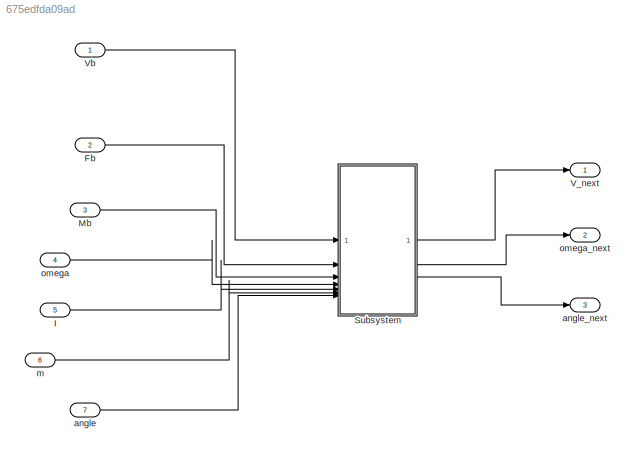
MODEL slx_675edfda09ad
KIND model
CONFIG AbsTol = auto
CONFIG EnableMultiTasking = off
CONFIG FixedStep = auto
CONFIG MaxStep = auto
CONFIG MinStep = auto
CONFIG RelTol = 1e-3
CONFIG SampleTimeConstraint = Unconstrained
CONFIG SolverName = VariableStepAuto
CONFIG StartTime = 0.0
CONFIG StopTime = 10.0
BLOCK [Inport] Fb
  Port = 2
BLOCK [Inport] I
  Port = 5
BLOCK [Inport] Mb
  Port = 3
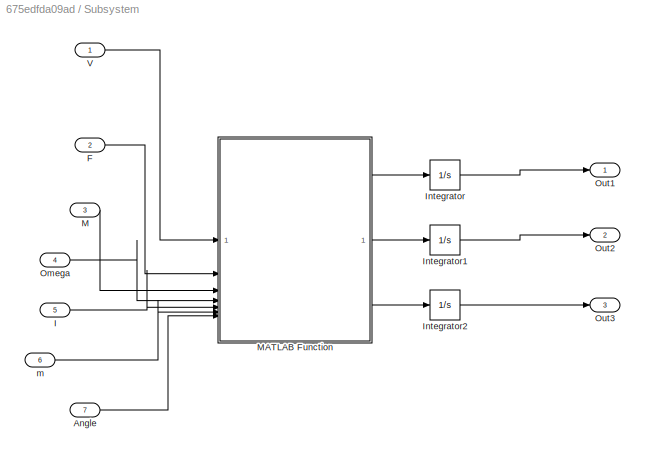
BLOCK [SubSystem] Subsystem
BLOCK [Inport] Subsystem/Angle
  Port = 7
BLOCK [Inport] Subsystem/F
  Port = 2
BLOCK [Inport] Subsystem/I
  Port = 5
BLOCK [Integrator] Subsystem/Integrator
  InitialCondition = V_init
BLOCK [Integrator] Subsystem/Integrator1
  InitialCondition = Omega_init
BLOCK [Integrator] Subsystem/Integrator2
  InitialCondition = Angle_init
BLOCK [Inport] Subsystem/M
  Port = 3
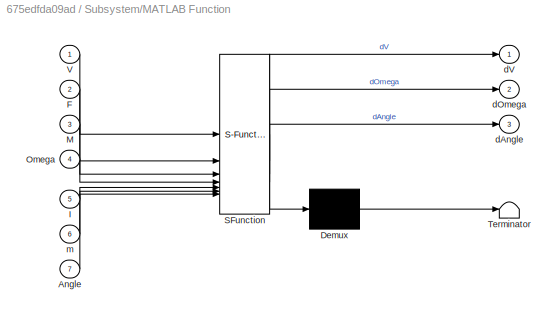
BLOCK [SubSystem] Subsystem/MATLAB Function
  ErrorFcn = Stateflow.Translate.translate
  PermitHierarchicalResolution = ExplicitOnly
  SFBlockType = MATLAB Function
  TreatAsAtomicUnit = on
BLOCK [Demux] Subsystem/MATLAB Function/ Demux 
  Outputs = 1
BLOCK [S-Function] Subsystem/MATLAB Function/ SFunction 
  EnableBusSupport = off
  FunctionName = sf_sfun
  PortCounts = [7 4]
  SFcnIsStateOwnerBlock = off
  SFunctionDeploymentMode = off
  Tag = Stateflow S-Function 2
BLOCK [Terminator] Subsystem/MATLAB Function/ Terminator 
BLOCK [Inport] Subsystem/MATLAB Function/Angle
  Port = 7
BLOCK [Inport] Subsystem/MATLAB Function/F
  Port = 2
BLOCK [Inport] Subsystem/MATLAB Function/I
  Port = 5
BLOCK [Inport] Subsystem/MATLAB Function/M
  Port = 3
BLOCK [Inport] Subsystem/MATLAB Function/Omega
  Port = 4
BLOCK [Inport] Subsystem/MATLAB Function/V
BLOCK [Outport] Subsystem/MATLAB Function/dAngle
  Port = 3
BLOCK [Outport] Subsystem/MATLAB Function/dOmega
  Port = 2
BLOCK [Outport] Subsystem/MATLAB Function/dV
BLOCK [Inport] Subsystem/MATLAB Function/m
  Port = 6
BLOCK [Inport] Subsystem/Omega
  Port = 4
BLOCK [Outport] Subsystem/Out1
BLOCK [Outport] Subsystem/Out2
  Port = 2
BLOCK [Outport] Subsystem/Out3
  Port = 3
BLOCK [Inport] Subsystem/V
BLOCK [Inport] Subsystem/m
  Port = 6
BLOCK [Outport] V_next
BLOCK [Inport] Vb
BLOCK [Inport] angle
  Port = 7
BLOCK [Outport] angle_next
  Port = 3
BLOCK [Inport] m
  Port = 6
BLOCK [Inport] omega
  Port = 4
BLOCK [Outport] omega_next
  Port = 2
LINE Fb:1 -> Subsystem:2
LINE I:1 -> Subsystem:5
LINE Mb:1 -> Subsystem:3
LINE Subsystem/Angle:1 -> Subsystem/MATLAB Function:7
LINE Subsystem/F:1 -> Subsystem/MATLAB Function:2
LINE Subsystem/I:1 -> Subsystem/MATLAB Function:5
LINE Subsystem/Integrator1:1 -> Subsystem/Out2:1
LINE Subsystem/Integrator2:1 -> Subsystem/Out3:1
LINE Subsystem/Integrator:1 -> Subsystem/Out1:1
LINE Subsystem/M:1 -> Subsystem/MATLAB Function:3
LINE Subsystem/MATLAB Function:1 -> Subsystem/Integrator:1
LINE Subsystem/MATLAB Function:2 -> Subsystem/Integrator1:1
LINE Subsystem/MATLAB Function:3 -> Subsystem/Integrator2:1
LINE Subsystem/Omega:1 -> Subsystem/MATLAB Function:4
LINE Subsystem/V:1 -> Subsystem/MATLAB Function:1
LINE Subsystem/m:1 -> Subsystem/MATLAB Function:6
LINE Subsystem:1 -> V_next:1
LINE Subsystem:2 -> omega_next:1
LINE Subsystem:3 -> angle_next:1
LINE Vb:1 -> Subsystem:1
LINE angle:1 -> Subsystem:7
LINE m:1 -> Subsystem:6
LINE omega:1 -> Subsystem:4
CHART Subsystem/MATLAB Function states=1 transitions=1
  STATE_LABEL 'eML_blk_kernel()'
  STATE_LABEL 'SCRIPT:\nfunction [dV,dOmega,dAngle] = fcn(V,F,M,Omega,I,m,Angle)\n\nVx=V(1);\nVy=V(2);\nVz=V(3);\n\nFx=F(1);\nFy=F(2);\nFz=F(3);\n\nMx=M(1);\nMy=M(2);\nMz=M(3);\n\nWx=Omega(1);\nWy=Omega(2);\nWz=Omega(3);\n\ntheta=Angle(1);\nphi=Angle(2);\nrama=Angle(3);\n\nIxx=I(1,1);\nIyy=I(2,2);\nIzz=I(3,3);\nIxy=I(1,2);\n\n\ndVx=Fx/m-g*sin(theta)-(Vz*Wy-Vy*Wz);\ndVy=Fy/m-g*cos(theta)*cos(rama)-(Vx*Wz-Vz*Wx);\ndVz=Fz/m+g*cos(theta)*sin(rama...<+386ch>'
CHART  states=0 transitions=0
